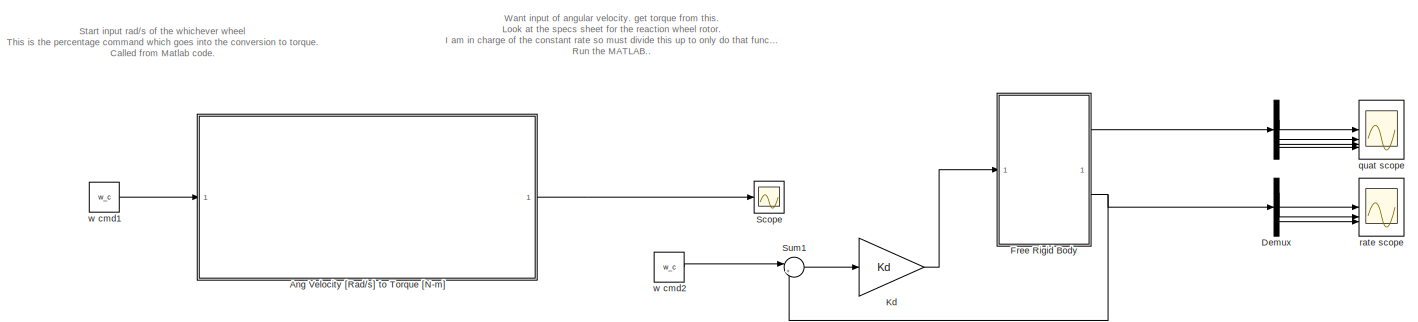
[diagram: root canvas - part 1/2, full width, top band]
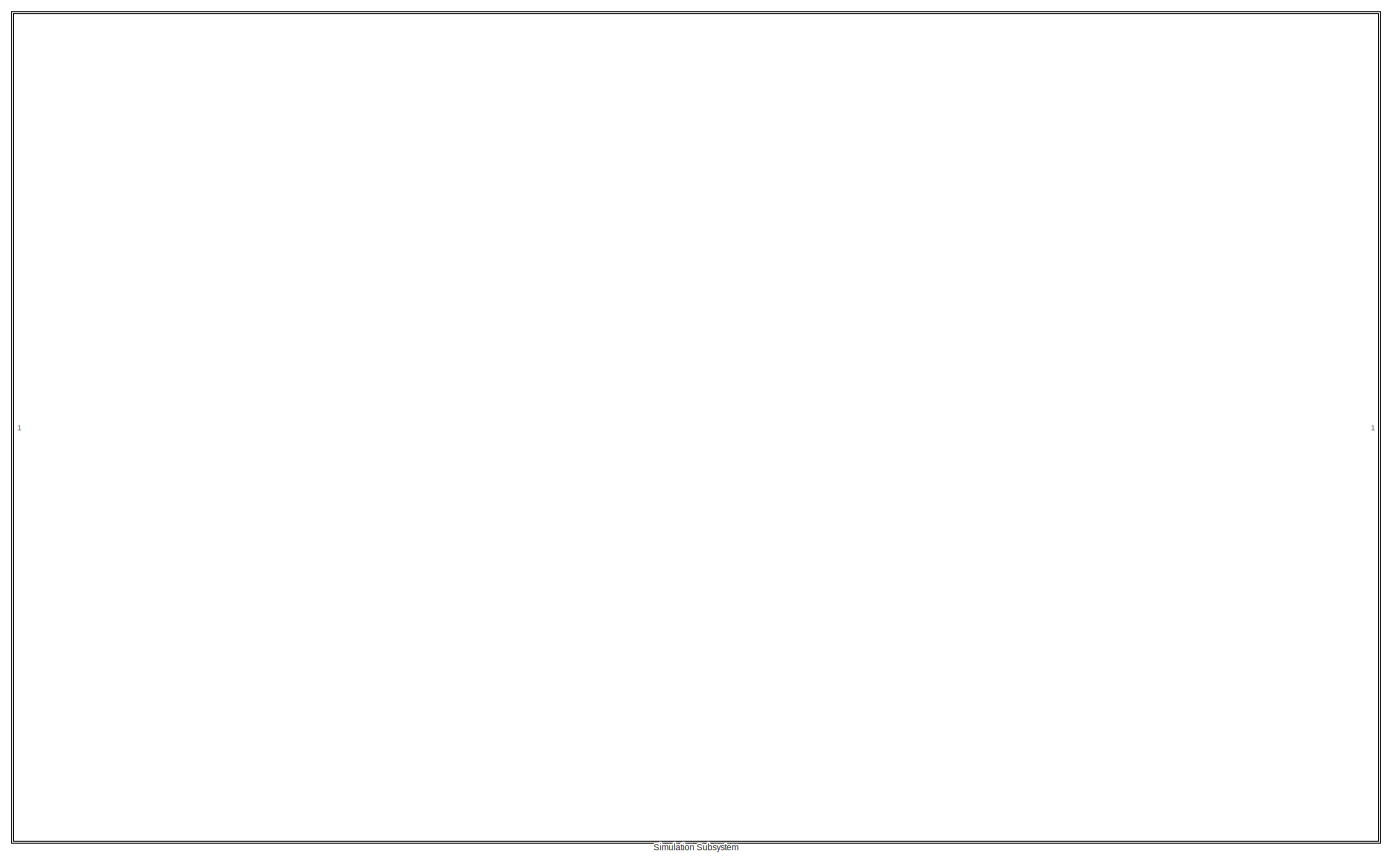
[diagram: root canvas - part 2/2, full width, middle band]
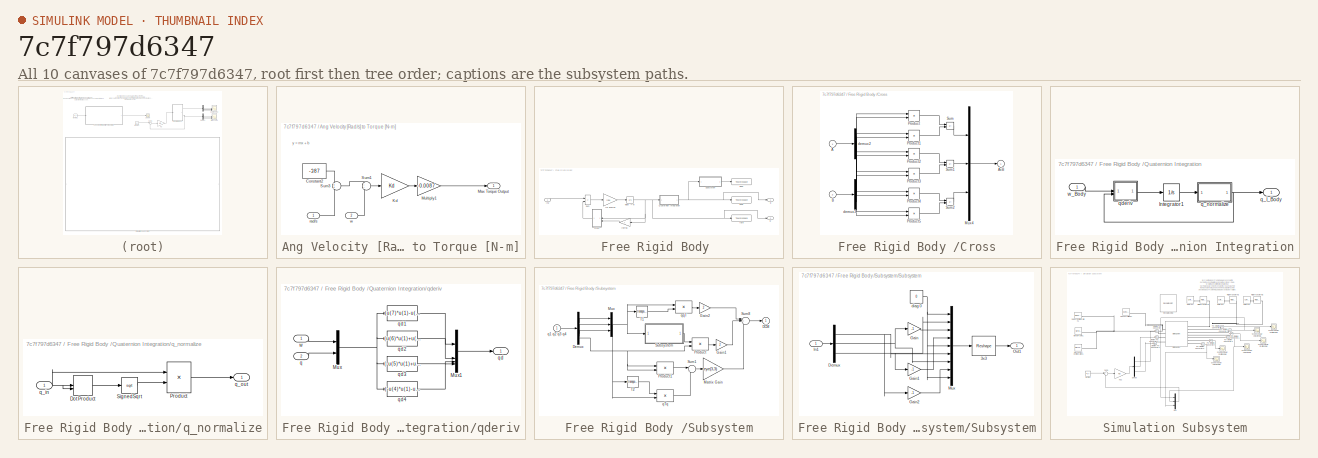
[diagram: thumbnail index - all 10 canvases of the model, root first then tree order]
MODEL slx_7c7f797d6347
KIND model
CONFIG AbsTol = auto
CONFIG EnableMultiTasking = on
CONFIG FixedStep = auto
CONFIG MaxStep = auto
CONFIG MinStep = auto
CONFIG RelTol = 1e-6
CONFIG SampleTimeConstraint = Unconstrained
CONFIG SolverName = ode45
CONFIG StartTime = 0.0
CONFIG StopTime = 2000
BLOCK [Demux]  
  DisplayOption = none
BLOCK [SubSystem] Ang Velocity [Rad//s] to Torque [N-m]
  Commented = on
  PortSchema = {"entries":[{"content":{"sides":[{"content":{"connectorIds":["In1"]},"type":"ConnectorPlacement.EquallySpacedRectSide","uuid":"82801330-93ff-4979-9aaa-f23536f30759"},{"content":{"connectorIds":["Out1"],"side":"RIGHT"},"type":"ConnectorPlacement.EquallySpacedRectSide","uuid":"0794f52d-44f8-4850-8d89-a5ca86ea26de"},{"content":{"side":"TOP"},"type":"ConnectorPlacement.EquallySpacedRectSide","uuid":"6...<+371ch>
BLOCK [Constant] Ang Velocity [Rad//s] to Torque [N-m]/Constant2
  Value = -387
BLOCK [Gain] Ang Velocity [Rad//s] to Torque [N-m]/Kd
  Gain = Kd
  Multiplication = Matrix(K*u)
  OutDataTypeStr = Inherit: Same as input
  ParamDataTypeStr = Inherit: Same as input
  SaturateOnIntegerOverflow = on
BLOCK [Outport] Ang Velocity [Rad//s] to Torque [N-m]/Max Torque Output
BLOCK [Gain] Ang Velocity [Rad//s] to Torque [N-m]/Multiply1
  Gain = -0.0087
BLOCK [Sum] Ang Velocity [Rad//s] to Torque [N-m]/Sum1
  Inputs = --
BLOCK [Sum] Ang Velocity [Rad//s] to Torque [N-m]/Sum3
BLOCK [Inport] Ang Velocity [Rad//s] to Torque [N-m]/rad//s
BLOCK [Inport] Ang Velocity [Rad//s] to Torque [N-m]/w
  Port = 2
BLOCK [Demux] Demux
  DisplayOption = none
  Outputs = 3
BLOCK [SubSystem] Free Rigid Body 
BLOCK [SubSystem] Free Rigid Body /Cross
BLOCK [Inport] Free Rigid Body /Cross/A
BLOCK [Outport] Free Rigid Body /Cross/AxB
  InitialOutput = 0
BLOCK [Inport] Free Rigid Body /Cross/B
  Port = 2
BLOCK [Mux] Free Rigid Body /Cross/Mux4
  Inputs = 3
BLOCK [Product] Free Rigid Body /Cross/Product
  InputSameDT = on
  OutDataTypeStr = Inherit: Same as first input
  SaturateOnIntegerOverflow = on
BLOCK [Product] Free Rigid Body /Cross/Product1
  InputSameDT = on
  OutDataTypeStr = Inherit: Same as first input
  SaturateOnIntegerOverflow = on
BLOCK [Product] Free Rigid Body /Cross/Product2
  InputSameDT = on
  OutDataTypeStr = Inherit: Same as first input
  SaturateOnIntegerOverflow = on
BLOCK [Product] Free Rigid Body /Cross/Product3
  InputSameDT = on
  OutDataTypeStr = Inherit: Same as first input
  SaturateOnIntegerOverflow = on
BLOCK [Product] Free Rigid Body /Cross/Product4
  InputSameDT = on
  OutDataTypeStr = Inherit: Same as first input
  SaturateOnIntegerOverflow = on
BLOCK [Product] Free Rigid Body /Cross/Product5
  InputSameDT = on
  OutDataTypeStr = Inherit: Same as first input
  SaturateOnIntegerOverflow = on
BLOCK [Sum] Free Rigid Body /Cross/Sum
  IconShape = rectangular
  InputSameDT = on
  Inputs = +-
  OutDataTypeStr = Inherit: Same as first input
  SaturateOnIntegerOverflow = on
BLOCK [Sum] Free Rigid Body /Cross/Sum1
  IconShape = rectangular
  InputSameDT = on
  Inputs = +-
  OutDataTypeStr = Inherit: Same as first input
  SaturateOnIntegerOverflow = on
BLOCK [Sum] Free Rigid Body /Cross/Sum2
  IconShape = rectangular
  InputSameDT = on
  Inputs = +-
  OutDataTypeStr = Inherit: Same as first input
  SaturateOnIntegerOverflow = on
BLOCK [Demux] Free Rigid Body /Cross/demux2
  DisplayOption = none
  Outputs = 3
BLOCK [Demux] Free Rigid Body /Cross/demux3
  DisplayOption = none
  Outputs = 3
BLOCK [ToWorkspace] Free Rigid Body /DCM
  FixptAsFi = on
  MaxDataPoints = inf
  SampleTime = -1
  SaveFormat = Structure With Time
  VariableName = DCM
BLOCK [Inport] Free Rigid Body /In2
BLOCK [Gain] Free Rigid Body /Inertia
  Gain = I
  Multiplication = Matrix(K*u)
  OutDataTypeStr = Inherit: Same as input
  ParamDataTypeStr = Inherit: Same as input
  SaturateOnIntegerOverflow = on
BLOCK [Gain] Free Rigid Body /Isc inverse
  Gain = invI
  Multiplication = Matrix(K*u)
  OutDataTypeStr = Inherit: Same as input
  ParamDataTypeStr = Inherit: Same as input
  SaturateOnIntegerOverflow = on
BLOCK [SubSystem] Free Rigid Body /Quaternion Integration
BLOCK [Integrator] Free Rigid Body /Quaternion Integration/Integrator1
  InitialCondition = q_init
BLOCK [Outport] Free Rigid Body /Quaternion Integration/q_I_Body
BLOCK [SubSystem] Free Rigid Body /Quaternion Integration/q_normalize
BLOCK [DotProduct] Free Rigid Body /Quaternion Integration/q_normalize/Dot Product
  OutDataTypeStr = Inherit: Inherit via internal rule
BLOCK [Product] Free Rigid Body /Quaternion Integration/q_normalize/Product
  InputSameDT = on
  Inputs = */
  OutDataTypeStr = Inherit: Same as first input
  SaturateOnIntegerOverflow = on
BLOCK [Sqrt] Free Rigid Body /Quaternion Integration/q_normalize/SignedSqrt
  IntermediateResultsDataTypeStr = double
BLOCK [Inport] Free Rigid Body /Quaternion Integration/q_normalize/q_in
  PortDimensions = 4
BLOCK [Outport] Free Rigid Body /Quaternion Integration/q_normalize/q_out
BLOCK [SubSystem] Free Rigid Body /Quaternion Integration/qderiv
BLOCK [Mux] Free Rigid Body /Quaternion Integration/qderiv/Mux
  DisplayOption = bar
  Inputs = 2
BLOCK [Mux] Free Rigid Body /Quaternion Integration/qderiv/Mux1
  DisplayOption = bar
BLOCK [Inport] Free Rigid Body /Quaternion Integration/qderiv/q
  Port = 2
BLOCK [Outport] Free Rigid Body /Quaternion Integration/qderiv/qd
BLOCK [Fcn] Free Rigid Body /Quaternion Integration/qderiv/qd1
  Expr = (u(7)*u(1)-u(6)*u(2)+u(5)*u(3))/2
BLOCK [Fcn] Free Rigid Body /Quaternion Integration/qderiv/qd2
  Expr = (u(6)*u(1)+u(7)*u(2)-u(4)*u(3))/2
BLOCK [Fcn] Free Rigid Body /Quaternion Integration/qderiv/qd3
  Expr = (-u(5)*u(1)+u(4)*u(2)+u(7)*u(3))/2
BLOCK [Fcn] Free Rigid Body /Quaternion Integration/qderiv/qd4
  Expr = (-u(4)*u(1)-u(5)*u(2)-u(6)*u(3))/2
BLOCK [Inport] Free Rigid Body /Quaternion Integration/qderiv/w
BLOCK [Inport] Free Rigid Body /Quaternion Integration/w_Body
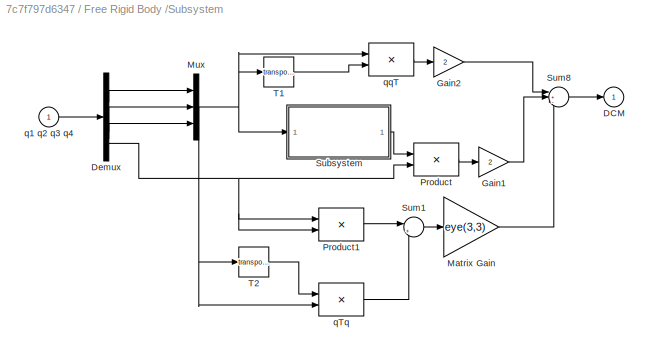
BLOCK [SubSystem] Free Rigid Body /Subsystem
BLOCK [Outport] Free Rigid Body /Subsystem/DCM
  InitialOutput = 0
BLOCK [Demux] Free Rigid Body /Subsystem/Demux
  DisplayOption = none
BLOCK [Gain] Free Rigid Body /Subsystem/Gain1
  Gain = 2
  OutDataTypeStr = Inherit: Same as input
  ParamDataTypeStr = Inherit: Same as input
  SaturateOnIntegerOverflow = on
BLOCK [Gain] Free Rigid Body /Subsystem/Gain2
  Gain = 2
  OutDataTypeStr = Inherit: Same as input
  ParamDataTypeStr = Inherit: Same as input
  SaturateOnIntegerOverflow = on
BLOCK [Gain] Free Rigid Body /Subsystem/Matrix Gain
  Gain = eye(3,3)
  OutDataTypeStr = Inherit: Same as input
  ParamDataTypeStr = Inherit: Same as input
  SaturateOnIntegerOverflow = on
BLOCK [Mux] Free Rigid Body /Subsystem/Mux
  DisplayOption = bar
  Inputs = 3
BLOCK [Product] Free Rigid Body /Subsystem/Product
  InputSameDT = on
  OutDataTypeStr = Inherit: Same as first input
  SaturateOnIntegerOverflow = on
BLOCK [Product] Free Rigid Body /Subsystem/Product1
  InputSameDT = on
  OutDataTypeStr = Inherit: Same as first input
  SaturateOnIntegerOverflow = on
BLOCK [SubSystem] Free Rigid Body /Subsystem/Subsystem
BLOCK [Reshape] Free Rigid Body /Subsystem/Subsystem/3x3
  OutputDimensionality = Customize
  OutputDimensions = [3,3]
BLOCK [Demux] Free Rigid Body /Subsystem/Subsystem/Demux
  DisplayOption = none
  Outputs = 3
BLOCK [Gain] Free Rigid Body /Subsystem/Subsystem/Gain
  Gain = -1
  OutDataTypeStr = Inherit: Same as input
  ParamDataTypeStr = Inherit: Same as input
  SaturateOnIntegerOverflow = on
BLOCK [Gain] Free Rigid Body /Subsystem/Subsystem/Gain1
  Gain = -1
  OutDataTypeStr = Inherit: Same as input
  ParamDataTypeStr = Inherit: Same as input
  SaturateOnIntegerOverflow = on
BLOCK [Gain] Free Rigid Body /Subsystem/Subsystem/Gain2
  Gain = -1
  OutDataTypeStr = Inherit: Same as input
  ParamDataTypeStr = Inherit: Same as input
  SaturateOnIntegerOverflow = on
BLOCK [Inport] Free Rigid Body /Subsystem/Subsystem/In1
BLOCK [Mux] Free Rigid Body /Subsystem/Subsystem/Mux
  DisplayOption = bar
  Inputs = 9
BLOCK [Outport] Free Rigid Body /Subsystem/Subsystem/Out1
BLOCK [Constant] Free Rigid Body /Subsystem/Subsystem/diag 0 
  Value = 0
BLOCK [Sum] Free Rigid Body /Subsystem/Sum1
  InputSameDT = on
  Inputs = |+-
  OutDataTypeStr = Inherit: Same as first input
  SaturateOnIntegerOverflow = on
BLOCK [Sum] Free Rigid Body /Subsystem/Sum8
  InputSameDT = on
  Inputs = |+-+
  OutDataTypeStr = Inherit: Same as first input
  SaturateOnIntegerOverflow = on
BLOCK [Math] Free Rigid Body /Subsystem/T1
  Operator = transpose
  SignedPower = on
BLOCK [Math] Free Rigid Body /Subsystem/T2
  Operator = transpose
  SignedPower = on
BLOCK [Inport] Free Rigid Body /Subsystem/q1 q2 q3 q4
BLOCK [Product] Free Rigid Body /Subsystem/qTq
  InputSameDT = on
  Multiplication = Matrix(*)
  OutDataTypeStr = Inherit: Same as first input
  SaturateOnIntegerOverflow = on
BLOCK [Product] Free Rigid Body /Subsystem/qqT
  InputSameDT = on
  Multiplication = Matrix(*)
  OutDataTypeStr = Inherit: Same as first input
  SaturateOnIntegerOverflow = on
BLOCK [Sum] Free Rigid Body /Sum
  IconShape = rectangular
  InputSameDT = on
  Inputs = |+-
  OutDataTypeStr = Inherit: Same as first input
  SaturateOnIntegerOverflow = on
BLOCK [Outport] Free Rigid Body /q
BLOCK [ToWorkspace] Free Rigid Body /quat
  FixptAsFi = on
  MaxDataPoints = inf
  SampleTime = -1
  SaveFormat = Structure With Time
  VariableName = quat
BLOCK [ToWorkspace] Free Rigid Body /rate
  FixptAsFi = on
  MaxDataPoints = inf
  SampleTime = -1
  SaveFormat = Structure With Time
  VariableName = rate
BLOCK [Outport] Free Rigid Body /w
  Port = 2
BLOCK [Integrator] Free Rigid Body /wdot -> w
  InitialCondition = wbn_init
BLOCK [Gain] Kd
  Gain = Kd
  Multiplication = Matrix(K*u)
  OutDataTypeStr = Inherit: Same as input
  ParamDataTypeStr = Inherit: Same as input
  SaturateOnIntegerOverflow = on
BLOCK [Scope] Scope
  Floating = off
  NumInputPorts = 1
  ScopeSpecificationString = Simulink.scopes.TimeScopeBlockCfg('CurrentConfiguration', extmgr.ConfigurationSet(extmgr.Configuration('Core','General UI',true),extmgr.Configuration('Core','Source UI',true),extmgr.Configuration('Sources','WiredSimulink',true,'DataLoggingVariableName','ScopeData1'),extmgr.Configuration('Visuals','Time Domain',true,'SerializedDisplays',{struct('MinYLimReal','-1.00000','MaxYLimReal','1.00000','YLab...<+1622ch>
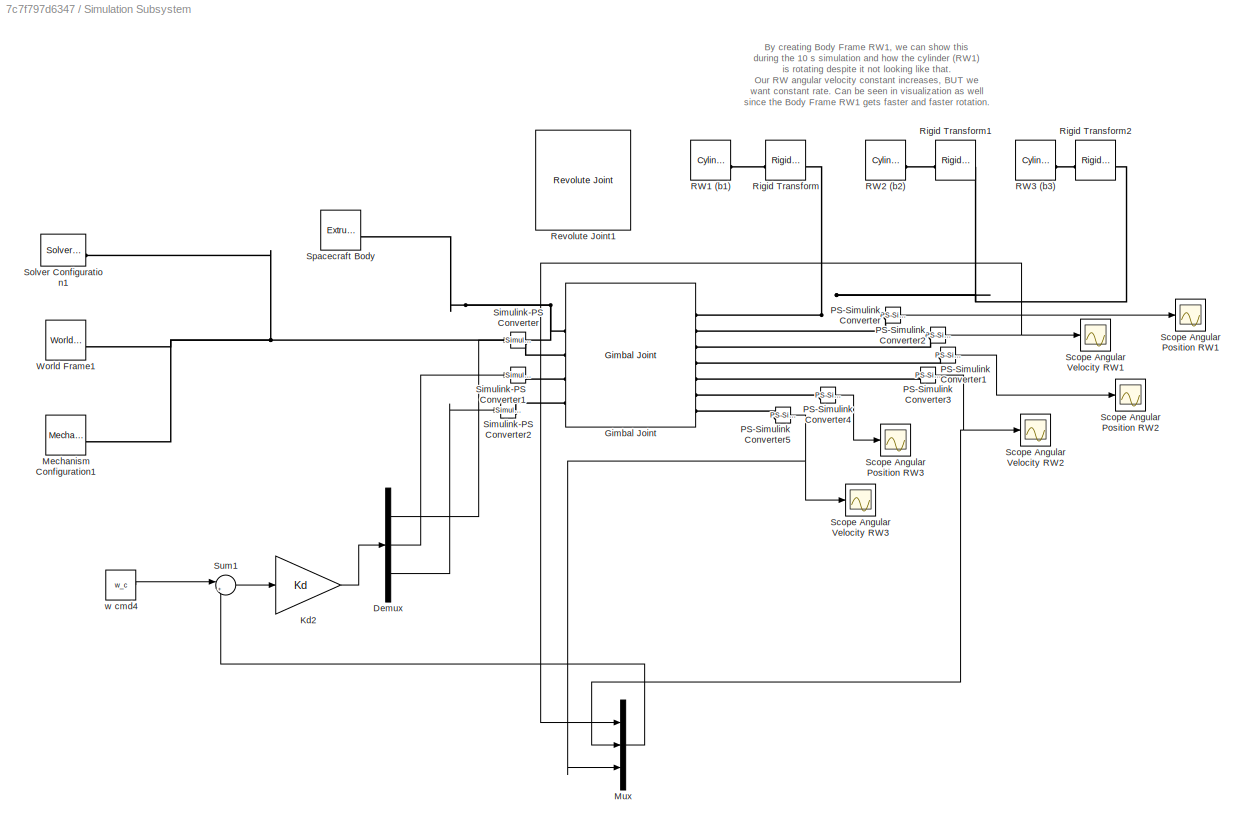
BLOCK [SubSystem] Simulation Subsystem
BLOCK [Demux] Simulation Subsystem/Demux
  Outputs = 3
BLOCK [Reference] Simulation Subsystem/Gimbal Joint  REF=sm_lib/Joints/Gimbal Joint
  SourceBlock = sm_lib/Joints/Gimbal Joint
  SourceType = Gimbal Joint
BLOCK [Gain] Simulation Subsystem/Kd2
  Gain = Kd
  Multiplication = Matrix(K*u)
  OutDataTypeStr = Inherit: Same as input
  ParamDataTypeStr = Inherit: Same as input
  SaturateOnIntegerOverflow = on
BLOCK [Reference] Simulation Subsystem/Mechanism Configuration1  REF=sm_lib/Utilities/Mechanism
Configuration
  SourceBlock = sm_lib/Utilities/Mechanism\nConfiguration
  SourceType = Mechanism\nConfiguration
BLOCK [Mux] Simulation Subsystem/Mux
  DisplayOption = bar
  Inputs = 3
BLOCK [Reference] Simulation Subsystem/PS-Simulink Converter  REF=nesl_utility/PS-Simulink
Converter
  SourceBlock = nesl_utility/PS-Simulink\nConverter
  SourceType = PS-Simulink\nConverter
BLOCK [Reference] Simulation Subsystem/PS-Simulink Converter1  REF=nesl_utility/PS-Simulink
Converter
  SourceBlock = nesl_utility/PS-Simulink\nConverter
  SourceType = PS-Simulink\nConverter
BLOCK [Reference] Simulation Subsystem/PS-Simulink Converter2  REF=nesl_utility/PS-Simulink
Converter
  SourceBlock = nesl_utility/PS-Simulink\nConverter
  SourceType = PS-Simulink\nConverter
BLOCK [Reference] Simulation Subsystem/PS-Simulink Converter3  REF=nesl_utility/PS-Simulink
Converter
  SourceBlock = nesl_utility/PS-Simulink\nConverter
  SourceType = PS-Simulink\nConverter
BLOCK [Reference] Simulation Subsystem/PS-Simulink Converter4  REF=nesl_utility/PS-Simulink
Converter
  SourceBlock = nesl_utility/PS-Simulink\nConverter
  SourceType = PS-Simulink\nConverter
BLOCK [Reference] Simulation Subsystem/PS-Simulink Converter5  REF=nesl_utility/PS-Simulink
Converter
  SourceBlock = nesl_utility/PS-Simulink\nConverter
  SourceType = PS-Simulink\nConverter
BLOCK [Reference] Simulation Subsystem/RW1 (b1)  REF=sm_lib/Body Elements/Cylindrical Solid
  SourceBlock = sm_lib/Body Elements/Cylindrical Solid
  SourceType = Cylindrical Solid
BLOCK [Reference] Simulation Subsystem/RW2 (b2)  REF=sm_lib/Body Elements/Cylindrical Solid
  SourceBlock = sm_lib/Body Elements/Cylindrical Solid
  SourceType = Cylindrical Solid
BLOCK [Reference] Simulation Subsystem/RW3 (b3)  REF=sm_lib/Body Elements/Cylindrical Solid
  SourceBlock = sm_lib/Body Elements/Cylindrical Solid
  SourceType = Cylindrical Solid
BLOCK [Reference] Simulation Subsystem/Revolute Joint1  REF=sm_lib/Joints/Revolute Joint
  Commented = on
  SourceBlock = sm_lib/Joints/Revolute Joint
  SourceType = Revolute Joint
BLOCK [Reference] Simulation Subsystem/Rigid Transform  REF=sm_lib/Frames and
Transforms/Rigid
Transform
  SourceBlock = sm_lib/Frames and\nTransforms/Rigid\nTransform
  SourceType = Rigid\nTransform
BLOCK [Reference] Simulation Subsystem/Rigid Transform1  REF=sm_lib/Frames and
Transforms/Rigid
Transform
  SourceBlock = sm_lib/Frames and\nTransforms/Rigid\nTransform
  SourceType = Rigid\nTransform
BLOCK [Reference] Simulation Subsystem/Rigid Transform2  REF=sm_lib/Frames and
Transforms/Rigid
Transform
  SourceBlock = sm_lib/Frames and\nTransforms/Rigid\nTransform
  SourceType = Rigid\nTransform
BLOCK [Scope] Simulation Subsystem/Scope Angular Position RW1
  Floating = off
  NumInputPorts = 1
  ScopeSpecificationString = Simulink.scopes.TimeScopeBlockCfg('CurrentConfiguration', extmgr.ConfigurationSet(extmgr.Configuration('Core','General UI',true,'FigureColor',[1 1 1]),extmgr.Configuration('Core','Source UI',true),extmgr.Configuration('Sources','WiredSimulink',true,'DataLoggingVariableName','ScopeData1'),extmgr.Configuration('Visuals','Time Domain',true,'SerializedDisplays',{struct('MinYLimReal','-0.02439','MaxYLi...<+1560ch>
BLOCK [Scope] Simulation Subsystem/Scope Angular Position RW2
  Floating = off
  NumInputPorts = 1
  ScopeSpecificationString = Simulink.scopes.TimeScopeBlockCfg('CurrentConfiguration', extmgr.ConfigurationSet(extmgr.Configuration('Core','General UI',true,'FigureColor',[1 1 1]),extmgr.Configuration('Core','Source UI',true),extmgr.Configuration('Sources','WiredSimulink',true,'DataLoggingVariableName','ScopeData2'),extmgr.Configuration('Visuals','Time Domain',true,'SerializedDisplays',{struct('MinYLimReal','-37.89403','MaxYL...<+1549ch>
BLOCK [Scope] Simulation Subsystem/Scope Angular Position RW3
  Floating = off
  NumInputPorts = 1
  ScopeSpecificationString = Simulink.scopes.TimeScopeBlockCfg('CurrentConfiguration', extmgr.ConfigurationSet(extmgr.Configuration('Core','General UI',true,'FigureColor',[1 1 1]),extmgr.Configuration('Core','Source UI',true),extmgr.Configuration('Sources','WiredSimulink',true,'DataLoggingVariableName','ScopeData5'),extmgr.Configuration('Visuals','Time Domain',true,'SerializedDisplays',{struct('MinYLimReal','-37.89403','MaxYL...<+1549ch>
BLOCK [Scope] Simulation Subsystem/Scope Angular Velocity RW1
  Floating = off
  NumInputPorts = 1
  ScopeSpecificationString = Simulink.scopes.TimeScopeBlockCfg('CurrentConfiguration', extmgr.ConfigurationSet(extmgr.Configuration('Core','General UI',true,'FigureColor',[1 1 1]),extmgr.Configuration('Core','Source UI',true),extmgr.Configuration('Sources','WiredSimulink',true,'DataLoggingVariableName','ScopeData3'),extmgr.Configuration('Visuals','Time Domain',true,'SerializedDisplays',{struct('MinYLimReal','-37.89403','MaxYL...<+1549ch>
BLOCK [Scope] Simulation Subsystem/Scope Angular Velocity RW2
  Floating = off
  NumInputPorts = 1
  ScopeSpecificationString = Simulink.scopes.TimeScopeBlockCfg('CurrentConfiguration', extmgr.ConfigurationSet(extmgr.Configuration('Core','General UI',true,'FigureColor',[1 1 1]),extmgr.Configuration('Core','Source UI',true),extmgr.Configuration('Sources','WiredSimulink',true,'DataLoggingVariableName','ScopeData4'),extmgr.Configuration('Visuals','Time Domain',true,'SerializedDisplays',{struct('MinYLimReal','-37.89403','MaxYL...<+1549ch>
BLOCK [Scope] Simulation Subsystem/Scope Angular Velocity RW3
  Floating = off
  NumInputPorts = 1
  ScopeSpecificationString = Simulink.scopes.TimeScopeBlockCfg('CurrentConfiguration', extmgr.ConfigurationSet(extmgr.Configuration('Core','General UI',true,'FigureColor',[1 1 1]),extmgr.Configuration('Core','Source UI',true),extmgr.Configuration('Sources','WiredSimulink',true,'DataLoggingVariableName','ScopeData7'),extmgr.Configuration('Visuals','Time Domain',true,'SerializedDisplays',{struct('MinYLimReal','-37.89403','MaxYL...<+1549ch>
BLOCK [Reference] Simulation Subsystem/Simulink-PS Converter  REF=nesl_utility/Simulink-PS
Converter
  SourceBlock = nesl_utility/Simulink-PS\nConverter
  SourceType = Simulink-PS\nConverter
BLOCK [Reference] Simulation Subsystem/Simulink-PS Converter1  REF=nesl_utility/Simulink-PS
Converter
  SourceBlock = nesl_utility/Simulink-PS\nConverter
  SourceType = Simulink-PS\nConverter
BLOCK [Reference] Simulation Subsystem/Simulink-PS Converter2  REF=nesl_utility/Simulink-PS
Converter
  SourceBlock = nesl_utility/Simulink-PS\nConverter
  SourceType = Simulink-PS\nConverter
BLOCK [Reference] Simulation Subsystem/Solver Configuration1  REF=nesl_utility/Solver
Configuration
  SourceBlock = nesl_utility/Solver\nConfiguration
  SourceType = Solver\nConfiguration
BLOCK [Reference] Simulation Subsystem/Spacecraft Body  REF=sm_lib/Body Elements/Extruded Solid
  SourceBlock = sm_lib/Body Elements/Extruded Solid
  SourceType = Extruded Solid
BLOCK [Sum] Simulation Subsystem/Sum1
  Inputs = |+-
BLOCK [Reference] Simulation Subsystem/World Frame1  REF=sm_lib/Frames and
Transforms/World Frame
  SourceBlock = sm_lib/Frames and\nTransforms/World Frame
  SourceType = World Frame
BLOCK [Constant] Simulation Subsystem/w cmd4
  Value = w_c
BLOCK [Sum] Sum1
  Inputs = |+-
BLOCK [Scope] quat scope
  Floating = off
  NumInputPorts = 4
  ScopeSpecificationString = Simulink.scopes.TimeScopeBlockCfg('CurrentConfiguration', extmgr.ConfigurationSet(extmgr.Configuration('Core','General UI',true),extmgr.Configuration('Core','Source UI',true),extmgr.Configuration('Sources','WiredSimulink',true,'DataLoggingVariableName','ScopeData1'),extmgr.Configuration('Visuals','Time Domain',true,'SerializedDisplays',{struct('MinYLimReal','-1.20776','MaxYLimReal','1.21219','YLab...<+3785ch>
BLOCK [Scope] rate scope
  Floating = off
  NumInputPorts = 3
  ScopeSpecificationString = Simulink.scopes.TimeScopeBlockCfg('CurrentConfiguration', extmgr.ConfigurationSet(extmgr.Configuration('Core','General UI',true),extmgr.Configuration('Core','Source UI',true),extmgr.Configuration('Sources','WiredSimulink',true),extmgr.Configuration('Visuals','Time Domain',true,'SerializedDisplays',{struct('MinYLimReal','-3.75','MaxYLimReal','33.75','YLabelReal','','MinYLimMag','0.00000','MaxYLimMa...<+2914ch>
BLOCK [Constant] w cmd1
  Commented = on
  Value = w_c
BLOCK [Constant] w cmd2
  Value = w_c
ANNOTATION (root): Start input rad/s of the whichever wheel This is the percentage command which goes into the conversion to torque. Called from Matlab code.
ANNOTATION (root): Want input of angular velocity. get torque from this. Look at the specs sheet for the reaction wheel rotor. I am in charge of the constant rate so must divide this up to only do that function. Run the MATLAB..
ANNOTATION Ang Velocity [Rad//s] to Torque [N-m]: y = mx + b
ANNOTATION Simulation Subsystem: By creating Body Frame RW1, we can show this during the 10 s simulation and how the cylinder (RW1) is rotating despite it not looking like that. Our RW angular velocity constant increases, BUT we want constant rate. Can be seen in visualization as well since the Body Frame RW1 gets faster and faster rotation.
LINE  :1 -> quat scope:1
LINE  :2 -> quat scope:2
LINE  :3 -> quat scope:3
LINE  :4 -> quat scope:4
LINE Ang Velocity [Rad//s] to Torque [N-m]/Constant2:1 -> Ang Velocity [Rad//s] to Torque [N-m]/Sum3:1
LINE Ang Velocity [Rad//s] to Torque [N-m]/Kd:1 -> Ang Velocity [Rad//s] to Torque [N-m]/Multiply1:1
LINE Ang Velocity [Rad//s] to Torque [N-m]/Multiply1:1 -> Ang Velocity [Rad//s] to Torque [N-m]/Max Torque Output:1
LINE Ang Velocity [Rad//s] to Torque [N-m]/Sum1:1 -> Ang Velocity [Rad//s] to Torque [N-m]/Kd:1
LINE Ang Velocity [Rad//s] to Torque [N-m]/Sum3:1 -> Ang Velocity [Rad//s] to Torque [N-m]/Sum1:1
LINE Ang Velocity [Rad//s] to Torque [N-m]/rad//s:1 -> Ang Velocity [Rad//s] to Torque [N-m]/Sum3:2
LINE Ang Velocity [Rad//s] to Torque [N-m]/w:1 -> Ang Velocity [Rad//s] to Torque [N-m]/Sum1:2
LINE Ang Velocity [Rad//s] to Torque [N-m]:1 -> Scope:1
LINE Demux:1 -> rate scope:1
LINE Demux:2 -> rate scope:2
LINE Demux:3 -> rate scope:3
LINE Free Rigid Body /Cross/A:1 -> Free Rigid Body /Cross/demux2:1
LINE Free Rigid Body /Cross/B:1 -> Free Rigid Body /Cross/demux3:1
LINE Free Rigid Body /Cross/Mux4:1 -> Free Rigid Body /Cross/AxB:1
LINE Free Rigid Body /Cross/Product1:1 -> Free Rigid Body /Cross/Sum:2
LINE Free Rigid Body /Cross/Product2:1 -> Free Rigid Body /Cross/Sum1:1
LINE Free Rigid Body /Cross/Product3:1 -> Free Rigid Body /Cross/Sum1:2
LINE Free Rigid Body /Cross/Product4:1 -> Free Rigid Body /Cross/Sum2:1
LINE Free Rigid Body /Cross/Product5:1 -> Free Rigid Body /Cross/Sum2:2
LINE Free Rigid Body /Cross/Product:1 -> Free Rigid Body /Cross/Sum:1
LINE Free Rigid Body /Cross/Sum1:1 -> Free Rigid Body /Cross/Mux4:2
LINE Free Rigid Body /Cross/Sum2:1 -> Free Rigid Body /Cross/Mux4:3
LINE Free Rigid Body /Cross/Sum:1 -> Free Rigid Body /Cross/Mux4:1
NET Free Rigid Body /Cross/demux2:1 -> Free Rigid Body /Cross/Product3:1, Free Rigid Body /Cross/Product4:1
NET Free Rigid Body /Cross/demux2:2 -> Free Rigid Body /Cross/Product5:1, Free Rigid Body /Cross/Product:1
NET Free Rigid Body /Cross/demux2:3 -> Free Rigid Body /Cross/Product1:1, Free Rigid Body /Cross/Product2:1
NET Free Rigid Body /Cross/demux3:1 -> Free Rigid Body /Cross/Product2:2, Free Rigid Body /Cross/Product5:2
NET Free Rigid Body /Cross/demux3:2 -> Free Rigid Body /Cross/Product1:2, Free Rigid Body /Cross/Product4:2
NET Free Rigid Body /Cross/demux3:3 -> Free Rigid Body /Cross/Product3:2, Free Rigid Body /Cross/Product:2
LINE Free Rigid Body /Cross:1 -> Free Rigid Body /Sum:2
LINE Free Rigid Body /In2:1 -> Free Rigid Body /Sum:1
LINE Free Rigid Body /Inertia:1 -> Free Rigid Body /Cross:2
LINE Free Rigid Body /Isc inverse:1 -> Free Rigid Body /wdot -> w:1
LINE Free Rigid Body /Quaternion Integration/Integrator1:1 -> Free Rigid Body /Quaternion Integration/q_normalize:1
LINE Free Rigid Body /Quaternion Integration/q_normalize/Dot Product:1 -> Free Rigid Body /Quaternion Integration/q_normalize/SignedSqrt:1
LINE Free Rigid Body /Quaternion Integration/q_normalize/Product:1 -> Free Rigid Body /Quaternion Integration/q_normalize/q_out:1
LINE Free Rigid Body /Quaternion Integration/q_normalize/SignedSqrt:1 -> Free Rigid Body /Quaternion Integration/q_normalize/Product:2
NET Free Rigid Body /Quaternion Integration/q_normalize/q_in:1 -> Free Rigid Body /Quaternion Integration/q_normalize/Dot Product:1, Free Rigid Body /Quaternion Integration/q_normalize/Dot Product:2, Free Rigid Body /Quaternion Integration/q_normalize/Product:1
NET Free Rigid Body /Quaternion Integration/q_normalize:1 -> Free Rigid Body /Quaternion Integration/q_I_Body:1, Free Rigid Body /Quaternion Integration/qderiv:2
LINE Free Rigid Body /Quaternion Integration/qderiv/Mux1:1 -> Free Rigid Body /Quaternion Integration/qderiv/qd:1
NET Free Rigid Body /Quaternion Integration/qderiv/Mux:1 -> Free Rigid Body /Quaternion Integration/qderiv/qd1:1, Free Rigid Body /Quaternion Integration/qderiv/qd2:1, Free Rigid Body /Quaternion Integration/qderiv/qd3:1, Free Rigid Body /Quaternion Integration/qderiv/qd4:1
LINE Free Rigid Body /Quaternion Integration/qderiv/q:1 -> Free Rigid Body /Quaternion Integration/qderiv/Mux:2
LINE Free Rigid Body /Quaternion Integration/qderiv/qd1:1 -> Free Rigid Body /Quaternion Integration/qderiv/Mux1:1
LINE Free Rigid Body /Quaternion Integration/qderiv/qd2:1 -> Free Rigid Body /Quaternion Integration/qderiv/Mux1:2
LINE Free Rigid Body /Quaternion Integration/qderiv/qd3:1 -> Free Rigid Body /Quaternion Integration/qderiv/Mux1:3
LINE Free Rigid Body /Quaternion Integration/qderiv/qd4:1 -> Free Rigid Body /Quaternion Integration/qderiv/Mux1:4
LINE Free Rigid Body /Quaternion Integration/qderiv/w:1 -> Free Rigid Body /Quaternion Integration/qderiv/Mux:1
LINE Free Rigid Body /Quaternion Integration/qderiv:1 -> Free Rigid Body /Quaternion Integration/Integrator1:1
LINE Free Rigid Body /Quaternion Integration/w_Body:1 -> Free Rigid Body /Quaternion Integration/qderiv:1
NET Free Rigid Body /Quaternion Integration:1 -> Free Rigid Body /Subsystem:1, Free Rigid Body /q:1, Free Rigid Body /quat:1
LINE Free Rigid Body /Subsystem/Demux:1 -> Free Rigid Body /Subsystem/Mux:1
LINE Free Rigid Body /Subsystem/Demux:2 -> Free Rigid Body /Subsystem/Mux:2
LINE Free Rigid Body /Subsystem/Demux:3 -> Free Rigid Body /Subsystem/Mux:3
NET Free Rigid Body /Subsystem/Demux:4 -> Free Rigid Body /Subsystem/Product1:1, Free Rigid Body /Subsystem/Product1:2, Free Rigid Body /Subsystem/Product:2
LINE Free Rigid Body /Subsystem/Gain1:1 -> Free Rigid Body /Subsystem/Sum8:2
LINE Free Rigid Body /Subsystem/Gain2:1 -> Free Rigid Body /Subsystem/Sum8:1
LINE Free Rigid Body /Subsystem/Matrix Gain:1 -> Free Rigid Body /Subsystem/Sum8:3
NET Free Rigid Body /Subsystem/Mux:1 -> Free Rigid Body /Subsystem/Subsystem:1, Free Rigid Body /Subsystem/T1:1, Free Rigid Body /Subsystem/T2:1, Free Rigid Body /Subsystem/qTq:2, Free Rigid Body /Subsystem/qqT:1
LINE Free Rigid Body /Subsystem/Product1:1 -> Free Rigid Body /Subsystem/Sum1:1
LINE Free Rigid Body /Subsystem/Product:1 -> Free Rigid Body /Subsystem/Gain1:1
LINE Free Rigid Body /Subsystem/Subsystem/3x3:1 -> Free Rigid Body /Subsystem/Subsystem/Out1:1
NET Free Rigid Body /Subsystem/Subsystem/Demux:1 -> Free Rigid Body /Subsystem/Subsystem/Gain2:1, Free Rigid Body /Subsystem/Subsystem/Mux:6
NET Free Rigid Body /Subsystem/Subsystem/Demux:2 -> Free Rigid Body /Subsystem/Subsystem/Gain:1, Free Rigid Body /Subsystem/Subsystem/Mux:7
NET Free Rigid Body /Subsystem/Subsystem/Demux:3 -> Free Rigid Body /Subsystem/Subsystem/Gain1:1, Free Rigid Body /Subsystem/Subsystem/Mux:2
LINE Free Rigid Body /Subsystem/Subsystem/Gain1:1 -> Free Rigid Body /Subsystem/Subsystem/Mux:4
LINE Free Rigid Body /Subsystem/Subsystem/Gain2:1 -> Free Rigid Body /Subsystem/Subsystem/Mux:8
LINE Free Rigid Body /Subsystem/Subsystem/Gain:1 -> Free Rigid Body /Subsystem/Subsystem/Mux:3
LINE Free Rigid Body /Subsystem/Subsystem/In1:1 -> Free Rigid Body /Subsystem/Subsystem/Demux:1
LINE Free Rigid Body /Subsystem/Subsystem/Mux:1 -> Free Rigid Body /Subsystem/Subsystem/3x3:1
NET Free Rigid Body /Subsystem/Subsystem/diag 0 :1 -> Free Rigid Body /Subsystem/Subsystem/Mux:1, Free Rigid Body /Subsystem/Subsystem/Mux:5, Free Rigid Body /Subsystem/Subsystem/Mux:9
LINE Free Rigid Body /Subsystem/Subsystem:1 -> Free Rigid Body /Subsystem/Product:1
LINE Free Rigid Body /Subsystem/Sum1:1 -> Free Rigid Body /Subsystem/Matrix Gain:1
LINE Free Rigid Body /Subsystem/Sum8:1 -> Free Rigid Body /Subsystem/DCM:1
LINE Free Rigid Body /Subsystem/T1:1 -> Free Rigid Body /Subsystem/qqT:2
LINE Free Rigid Body /Subsystem/T2:1 -> Free Rigid Body /Subsystem/qTq:1
LINE Free Rigid Body /Subsystem/q1 q2 q3 q4:1 -> Free Rigid Body /Subsystem/Demux:1
LINE Free Rigid Body /Subsystem/qTq:1 -> Free Rigid Body /Subsystem/Sum1:2
LINE Free Rigid Body /Subsystem/qqT:1 -> Free Rigid Body /Subsystem/Gain2:1
LINE Free Rigid Body /Subsystem:1 -> Free Rigid Body /DCM:1
LINE Free Rigid Body /Sum:1 -> Free Rigid Body /Isc inverse:1
NET Free Rigid Body /wdot -> w:1 -> Free Rigid Body /Cross:1, Free Rigid Body /Inertia:1, Free Rigid Body /Quaternion Integration:1, Free Rigid Body /rate:1, Free Rigid Body /w:1
LINE Free Rigid Body :1 ->  :1
NET Free Rigid Body :2 -> Demux:1, Sum1:2
LINE Kd:1 -> Free Rigid Body :1
LINE Simulation Subsystem/Demux:1 -> Simulation Subsystem/Simulink-PS Converter:1
LINE Simulation Subsystem/Demux:2 -> Simulation Subsystem/Simulink-PS Converter1:1
LINE Simulation Subsystem/Demux:3 -> Simulation Subsystem/Simulink-PS Converter2:1
LINE Simulation Subsystem/Kd2:1 -> Simulation Subsystem/Demux:1
LINE Simulation Subsystem/Mux:1 -> Simulation Subsystem/Sum1:2
LINE Simulation Subsystem/PS-Simulink Converter1:1 -> Simulation Subsystem/Scope Angular Position RW2:1
NET Simulation Subsystem/PS-Simulink Converter2:1 -> Simulation Subsystem/Mux:1, Simulation Subsystem/Scope Angular Velocity RW1:1
NET Simulation Subsystem/PS-Simulink Converter3:1 -> Simulation Subsystem/Mux:2, Simulation Subsystem/Scope Angular Velocity RW2:1
LINE Simulation Subsystem/PS-Simulink Converter4:1 -> Simulation Subsystem/Scope Angular Position RW3:1
NET Simulation Subsystem/PS-Simulink Converter5:1 -> Simulation Subsystem/Mux:3, Simulation Subsystem/Scope Angular Velocity RW3:1
LINE Simulation Subsystem/PS-Simulink Converter:1 -> Simulation Subsystem/Scope Angular Position RW1:1
LINE Simulation Subsystem/Sum1:1 -> Simulation Subsystem/Kd2:1
LINE Simulation Subsystem/w cmd4:1 -> Simulation Subsystem/Sum1:1
LINE Sum1:1 -> Kd:1
LINE w cmd1:1 -> Ang Velocity [Rad//s] to Torque [N-m]:1
LINE w cmd2:1 -> Sum1:1
PNET net1: Simulation Subsystem/Gimbal Joint:LConn1 -- Simulation Subsystem/Mechanism Configuration1:RConn1 -- Simulation Subsystem/Solver Configuration1:RConn1 -- Simulation Subsystem/Spacecraft Body:RConn1 -- Simulation Subsystem/World Frame1:RConn1
PLINE Simulation Subsystem/Gimbal Joint:LConn2 -- Simulation Subsystem/Simulink-PS Converter:RConn1
PLINE Simulation Subsystem/Gimbal Joint:LConn3 -- Simulation Subsystem/Simulink-PS Converter1:RConn1
PLINE Simulation Subsystem/Gimbal Joint:LConn4 -- Simulation Subsystem/Simulink-PS Converter2:RConn1
PNET net2: Simulation Subsystem/Gimbal Joint:RConn1 -- Simulation Subsystem/Rigid Transform1:RConn1 -- Simulation Subsystem/Rigid Transform2:RConn1 -- Simulation Subsystem/Rigid Transform:RConn1
PLINE Simulation Subsystem/Gimbal Joint:RConn2 -- Simulation Subsystem/PS-Simulink Converter:LConn1
PLINE Simulation Subsystem/Gimbal Joint:RConn3 -- Simulation Subsystem/PS-Simulink Converter2:LConn1
PLINE Simulation Subsystem/Gimbal Joint:RConn4 -- Simulation Subsystem/PS-Simulink Converter1:LConn1
PLINE Simulation Subsystem/Gimbal Joint:RConn5 -- Simulation Subsystem/PS-Simulink Converter3:LConn1
PLINE Simulation Subsystem/Gimbal Joint:RConn6 -- Simulation Subsystem/PS-Simulink Converter4:LConn1
PLINE Simulation Subsystem/Gimbal Joint:RConn7 -- Simulation Subsystem/PS-Simulink Converter5:LConn1
PLINE Simulation Subsystem/RW1 (b1):RConn1 -- Simulation Subsystem/Rigid Transform:LConn1
PLINE Simulation Subsystem/RW2 (b2):RConn1 -- Simulation Subsystem/Rigid Transform1:LConn1
PLINE Simulation Subsystem/RW3 (b3):RConn1 -- Simulation Subsystem/Rigid Transform2:LConn1
note: NET lines group one-source signal fan-out (src -> all destinations, sorted); 1:1 wires keep LINE; PNET lines group multi-terminal physical nets as a canonical sorted terminal list (undirected conserving connections); 2-terminal nets keep the pairwise PLINE form
